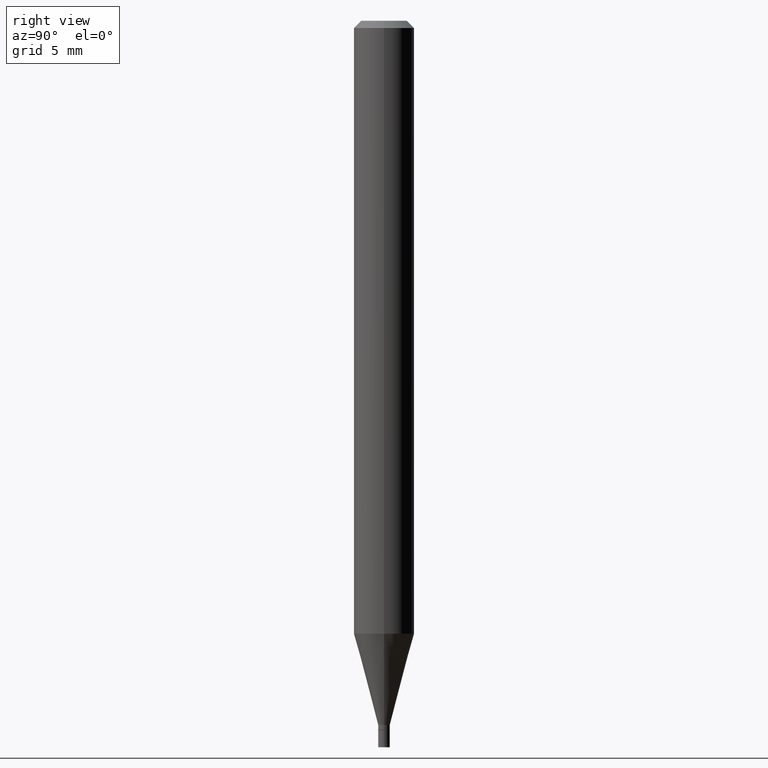
[diagram: clean part render]
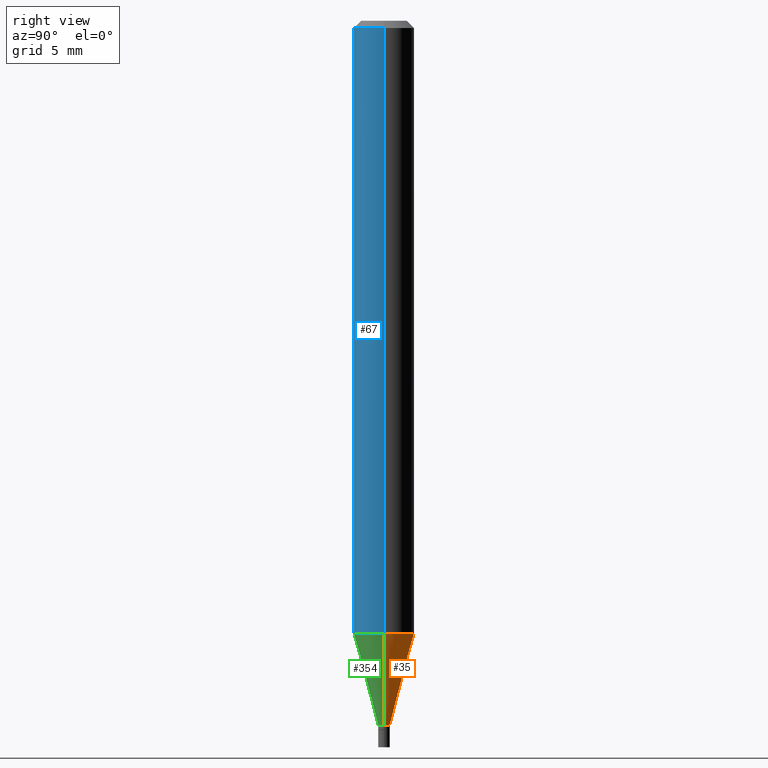
[diagram: same view with three faces highlighted in distinct colors, each labeled with its STEP entity id]
A machine part, right view with three faces highlighted in distinct colors.
Their STEP definitions:

[orange] entity #35 — the highlighted conical surface has half-angle 15 deg.
#18 = AXIS2_PLACEMENT_3D ( 'NONE', #69, #173, #273 ) ;
#35 = ADVANCED_FACE ( 'NONE', ( #154 ), #257, .T. ) ;
#42 = CARTESIAN_POINT ( 'NONE',  ( 3.555711644193189020E-29, -5.076613866677933538E-15, -1.454000000000000181 ) ) ;
#51 = VECTOR ( 'NONE', #462, 39.37007874015748854 ) ;
#53 = ORIENTED_EDGE ( 'NONE', *, *, #323, .F. ) ;
#69 = CARTESIAN_POINT ( 'NONE',  ( 3.094817645626298552E-29, -4.418579386290752571E-15, -1.265531434217771922 ) ) ;
#75 = LINE ( 'NONE', #210, #143 ) ;
#82 = CARTESIAN_POINT ( 'NONE',  ( 3.555711644193189020E-29, -5.076613866677933538E-15, -1.454000000000000181 ) ) ;
#95 = CIRCLE ( 'NONE', #18, 0.06250000000000000000 ) ;
#112 = DIRECTION ( 'NONE',  ( -2.445468806185136597E-29, 3.491481338843145583E-15, 1.000000000000000000 ) ) ;
#127 = EDGE_LOOP ( 'NONE', ( #262, #186, #53, #404 ) ) ;
#138 = VERTEX_POINT ( 'NONE', #400 ) ;
#140 = EDGE_CURVE ( 'NONE', #138, #160, #412, .T. ) ;
#143 = VECTOR ( 'NONE', #278, 39.37007874015748854 ) ;
#148 = VERTEX_POINT ( 'NONE', #177 ) ;
#154 = FACE_OUTER_BOUND ( 'NONE', #127, .T. ) ;
#160 = VERTEX_POINT ( 'NONE', #226 ) ;
#170 = LINE ( 'NONE', #312, #51 ) ;
#173 = DIRECTION ( 'NONE',  ( -2.445468806185136597E-29, 3.491481338843145583E-15, 1.000000000000000000 ) ) ;
#177 = CARTESIAN_POINT ( 'NONE',  ( -0.06250000000000000000, -3.974490176440689955E-15, -1.265531434217771922 ) ) ;
#181 = DIRECTION ( 'NONE',  ( 1.000000000000000000, -6.982962677686296687E-15, 0.000000000000000000 ) ) ;
#186 = ORIENTED_EDGE ( 'NONE', *, *, #234, .T. ) ;
#187 = AXIS2_PLACEMENT_3D ( 'NONE', #42, #215, #181 ) ;
#205 = AXIS2_PLACEMENT_3D ( 'NONE', #82, #112, #366 ) ;
#210 = CARTESIAN_POINT ( 'NONE',  ( -0.01199999999999992219, -4.991348738386722228E-15, -1.454000000000000181 ) ) ;
#215 = DIRECTION ( 'NONE',  ( -2.445468806185136597E-29, 3.491481338843145583E-15, 1.000000000000000000 ) ) ;
#226 = CARTESIAN_POINT ( 'NONE',  ( -0.01199999999999992219, -4.482919457413706092E-15, -1.454000000000000181 ) ) ;
#234 = EDGE_CURVE ( 'NONE', #160, #148, #75, .T. ) ;
#257 = CONICAL_SURFACE ( 'NONE', #187, 0.01199999999999992219, 0.2617993877991498519 ) ;
#262 = ORIENTED_EDGE ( 'NONE', *, *, #140, .T. ) ;
#273 = DIRECTION ( 'NONE',  ( 1.000000000000000000, -6.982962677686262766E-15, 0.000000000000000000 ) ) ;
#278 = DIRECTION ( 'NONE',  ( -0.2588190451025211281, 5.211531920934547886E-15, 0.9659258262890679791 ) ) ;
#312 = CARTESIAN_POINT ( 'NONE',  ( 0.01199999999999992219, -5.160409418810168864E-15, -1.454000000000000181 ) ) ;
#313 = CARTESIAN_POINT ( 'NONE',  ( 0.06250000000000000000, -4.855014553646144241E-15, -1.265531434217771922 ) ) ;
#323 = EDGE_CURVE ( 'NONE', #384, #148, #95, .T. ) ;
#341 = EDGE_CURVE ( 'NONE', #138, #384, #170, .T. ) ;
#366 = DIRECTION ( 'NONE',  ( 1.000000000000000000, -6.982962677686296687E-15, 0.000000000000000000 ) ) ;
#384 = VERTEX_POINT ( 'NONE', #313 ) ;
#400 = CARTESIAN_POINT ( 'NONE',  ( 0.01199999999999992219, -5.160409418810168864E-15, -1.454000000000000181 ) ) ;
#404 = ORIENTED_EDGE ( 'NONE', *, *, #341, .F. ) ;
#412 = CIRCLE ( 'NONE', #205, 0.01199999999999992219 ) ;
#462 = DIRECTION ( 'NONE',  ( 0.2588190451025211281, 1.565188264969622954E-15, 0.9659258262890679791 ) ) ;

[blue] entity #67 — the highlighted cylindrical surface (edge-blend (fillet) strip) has radius 1.5875 mm, axis along (-0, 0, 1).
#1 = AXIS2_PLACEMENT_3D ( 'NONE', #249, #175, #108 ) ;
#6 = AXIS2_PLACEMENT_3D ( 'NONE', #285, #433, #113 ) ;
#14 = ORIENTED_EDGE ( 'NONE', *, *, #129, .F. ) ;
#15 = CARTESIAN_POINT ( 'NONE',  ( -0.06250000000000000000, -1.791386593336637406E-15, -0.01499999999999999944 ) ) ;
#17 = VERTEX_POINT ( 'NONE', #15 ) ;
#49 = DIRECTION ( 'NONE',  ( 1.000000000000000000, -6.982962677686266711E-15, 4.876176775795935793E-29 ) ) ;
#67 = ADVANCED_FACE ( 'NONE', ( #189 ), #117, .T. ) ;
#93 = EDGE_CURVE ( 'NONE', #148, #384, #284, .T. ) ;
#104 = CARTESIAN_POINT ( 'NONE',  ( 0.06250000000000000000, -4.888073874380388472E-16, -0.01499999999999999944 ) ) ;
#108 = DIRECTION ( 'NONE',  ( 1.000000000000000000, -6.982962677686266711E-15, 0.000000000000000000 ) ) ;
#113 = DIRECTION ( 'NONE',  ( 1.000000000000000000, -6.982962677686262766E-15, 0.000000000000000000 ) ) ;
#117 = CYLINDRICAL_SURFACE ( 'NONE', #431, 0.06250000000000000000 ) ;
#129 = EDGE_CURVE ( 'NONE', #148, #17, #261, .T. ) ;
#130 = EDGE_CURVE ( 'NONE', #384, #289, #358, .T. ) ;
#142 = CARTESIAN_POINT ( 'NONE',  ( -0.06250000000000000000, 4.440892098500626162E-16, -3.074334431409316114E-30 ) ) ;
#148 = VERTEX_POINT ( 'NONE', #177 ) ;
#175 = DIRECTION ( 'NONE',  ( -2.445468806185136597E-29, 3.491481338843145583E-15, 1.000000000000000000 ) ) ;
#177 = CARTESIAN_POINT ( 'NONE',  ( -0.06250000000000000000, -3.974490176440689955E-15, -1.265531434217771922 ) ) ;
#189 = FACE_OUTER_BOUND ( 'NONE', #436, .T. ) ;
#198 = ORIENTED_EDGE ( 'NONE', *, *, #301, .F. ) ;
#243 = VECTOR ( 'NONE', #396, 39.37007874015748143 ) ;
#249 = CARTESIAN_POINT ( 'NONE',  ( 3.668203209277705088E-31, -5.237222008264718399E-17, -0.01499999999999999944 ) ) ;
#259 = DIRECTION ( 'NONE',  ( -2.445468806185136597E-29, 3.491481338843145583E-15, 1.000000000000000000 ) ) ;
#261 = LINE ( 'NONE', #142, #243 ) ;
#284 = CIRCLE ( 'NONE', #6, 0.06250000000000000000 ) ;
#285 = CARTESIAN_POINT ( 'NONE',  ( 3.094817645626298552E-29, -4.418579386290752571E-15, -1.265531434217771922 ) ) ;
#289 = VERTEX_POINT ( 'NONE', #104 ) ;
#301 = EDGE_CURVE ( 'NONE', #17, #289, #460, .T. ) ;
#313 = CARTESIAN_POINT ( 'NONE',  ( 0.06250000000000000000, -4.855014553646144241E-15, -1.265531434217771922 ) ) ;
#357 = CARTESIAN_POINT ( 'NONE',  ( 0.000000000000000000, 0.000000000000000000, 0.000000000000000000 ) ) ;
#358 = LINE ( 'NONE', #361, #360 ) ;
#360 = VECTOR ( 'NONE', #437, 39.37007874015748143 ) ;
#361 = CARTESIAN_POINT ( 'NONE',  ( 0.06250000000000000000, -4.364351673553916694E-16, 3.047610484872459871E-30 ) ) ;
#368 = ORIENTED_EDGE ( 'NONE', *, *, #93, .T. ) ;
#384 = VERTEX_POINT ( 'NONE', #313 ) ;
#396 = DIRECTION ( 'NONE',  ( -2.445468806185136877E-29, 3.491481338843145188E-15, 1.000000000000000000 ) ) ;
#417 = ORIENTED_EDGE ( 'NONE', *, *, #130, .T. ) ;
#431 = AXIS2_PLACEMENT_3D ( 'NONE', #357, #259, #49 ) ;
#433 = DIRECTION ( 'NONE',  ( -2.445468806185136597E-29, 3.491481338843145583E-15, 1.000000000000000000 ) ) ;
#436 = EDGE_LOOP ( 'NONE', ( #14, #368, #417, #198 ) ) ;
#437 = DIRECTION ( 'NONE',  ( -2.445468806185136877E-29, 3.491481338843145188E-15, 1.000000000000000000 ) ) ;
#460 = CIRCLE ( 'NONE', #1, 0.06250000000000000000 ) ;

[green] entity #354 — the highlighted conical surface has half-angle 15 deg.
#6 = AXIS2_PLACEMENT_3D ( 'NONE', #285, #433, #113 ) ;
#26 = EDGE_CURVE ( 'NONE', #160, #138, #355, .T. ) ;
#37 = ORIENTED_EDGE ( 'NONE', *, *, #234, .F. ) ;
#45 = ORIENTED_EDGE ( 'NONE', *, *, #26, .T. ) ;
#51 = VECTOR ( 'NONE', #462, 39.37007874015748854 ) ;
#75 = LINE ( 'NONE', #210, #143 ) ;
#93 = EDGE_CURVE ( 'NONE', #148, #384, #284, .T. ) ;
#113 = DIRECTION ( 'NONE',  ( 1.000000000000000000, -6.982962677686262766E-15, 0.000000000000000000 ) ) ;
#131 = AXIS2_PLACEMENT_3D ( 'NONE', #363, #290, #151 ) ;
#136 = CARTESIAN_POINT ( 'NONE',  ( 3.555711644193189020E-29, -5.076613866677933538E-15, -1.454000000000000181 ) ) ;
#138 = VERTEX_POINT ( 'NONE', #400 ) ;
#143 = VECTOR ( 'NONE', #278, 39.37007874015748854 ) ;
#148 = VERTEX_POINT ( 'NONE', #177 ) ;
#151 = DIRECTION ( 'NONE',  ( 1.000000000000000000, -6.982962677686296687E-15, 0.000000000000000000 ) ) ;
#160 = VERTEX_POINT ( 'NONE', #226 ) ;
#164 = AXIS2_PLACEMENT_3D ( 'NONE', #136, #421, #246 ) ;
#170 = LINE ( 'NONE', #312, #51 ) ;
#177 = CARTESIAN_POINT ( 'NONE',  ( -0.06250000000000000000, -3.974490176440689955E-15, -1.265531434217771922 ) ) ;
#210 = CARTESIAN_POINT ( 'NONE',  ( -0.01199999999999992219, -4.991348738386722228E-15, -1.454000000000000181 ) ) ;
#226 = CARTESIAN_POINT ( 'NONE',  ( -0.01199999999999992219, -4.482919457413706092E-15, -1.454000000000000181 ) ) ;
#233 = EDGE_LOOP ( 'NONE', ( #37, #45, #416, #451 ) ) ;
#234 = EDGE_CURVE ( 'NONE', #160, #148, #75, .T. ) ;
#246 = DIRECTION ( 'NONE',  ( 1.000000000000000000, -6.982962677686296687E-15, 0.000000000000000000 ) ) ;
#278 = DIRECTION ( 'NONE',  ( -0.2588190451025211281, 5.211531920934547886E-15, 0.9659258262890679791 ) ) ;
#284 = CIRCLE ( 'NONE', #6, 0.06250000000000000000 ) ;
#285 = CARTESIAN_POINT ( 'NONE',  ( 3.094817645626298552E-29, -4.418579386290752571E-15, -1.265531434217771922 ) ) ;
#290 = DIRECTION ( 'NONE',  ( -2.445468806185136597E-29, 3.491481338843145583E-15, 1.000000000000000000 ) ) ;
#310 = CONICAL_SURFACE ( 'NONE', #164, 0.01199999999999992219, 0.2617993877991498519 ) ;
#312 = CARTESIAN_POINT ( 'NONE',  ( 0.01199999999999992219, -5.160409418810168864E-15, -1.454000000000000181 ) ) ;
#313 = CARTESIAN_POINT ( 'NONE',  ( 0.06250000000000000000, -4.855014553646144241E-15, -1.265531434217771922 ) ) ;
#341 = EDGE_CURVE ( 'NONE', #138, #384, #170, .T. ) ;
#354 = ADVANCED_FACE ( 'NONE', ( #427 ), #310, .T. ) ;
#355 = CIRCLE ( 'NONE', #131, 0.01199999999999992219 ) ;
#363 = CARTESIAN_POINT ( 'NONE',  ( 3.555711644193189020E-29, -5.076613866677933538E-15, -1.454000000000000181 ) ) ;
#384 = VERTEX_POINT ( 'NONE', #313 ) ;
#400 = CARTESIAN_POINT ( 'NONE',  ( 0.01199999999999992219, -5.160409418810168864E-15, -1.454000000000000181 ) ) ;
#416 = ORIENTED_EDGE ( 'NONE', *, *, #341, .T. ) ;
#421 = DIRECTION ( 'NONE',  ( -2.445468806185136597E-29, 3.491481338843145583E-15, 1.000000000000000000 ) ) ;
#427 = FACE_OUTER_BOUND ( 'NONE', #233, .T. ) ;
#433 = DIRECTION ( 'NONE',  ( -2.445468806185136597E-29, 3.491481338843145583E-15, 1.000000000000000000 ) ) ;
#451 = ORIENTED_EDGE ( 'NONE', *, *, #93, .F. ) ;
#462 = DIRECTION ( 'NONE',  ( 0.2588190451025211281, 1.565188264969622954E-15, 0.9659258262890679791 ) ) ;